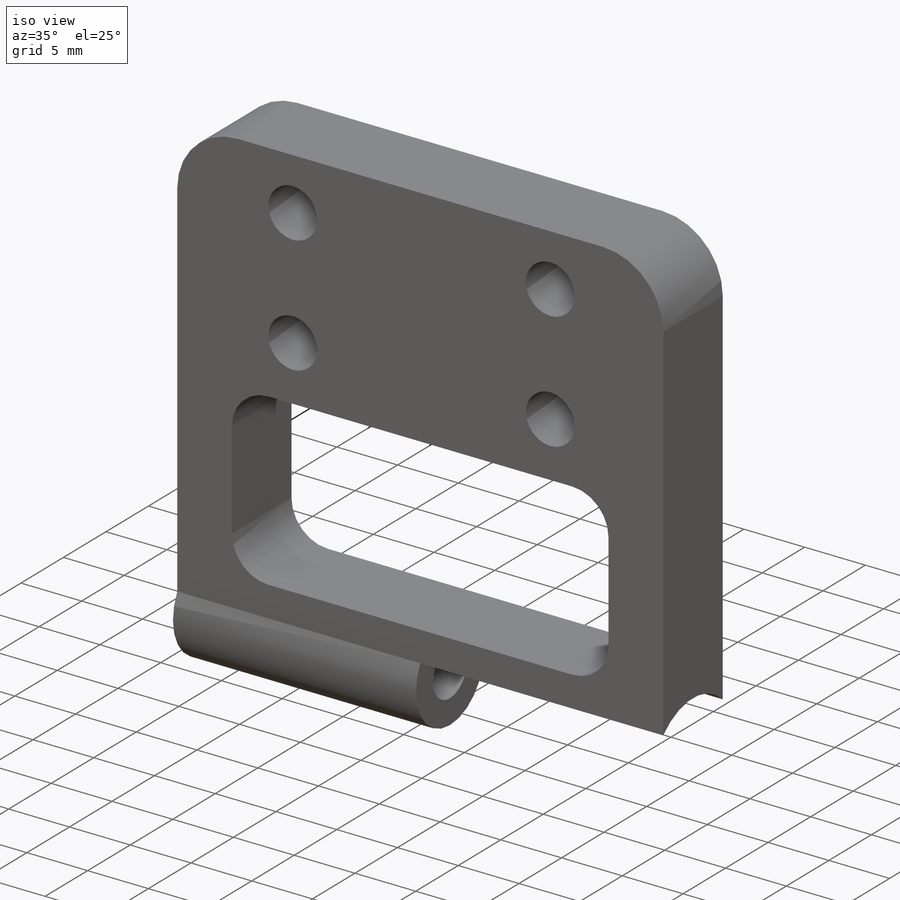
[diagram: iso view]
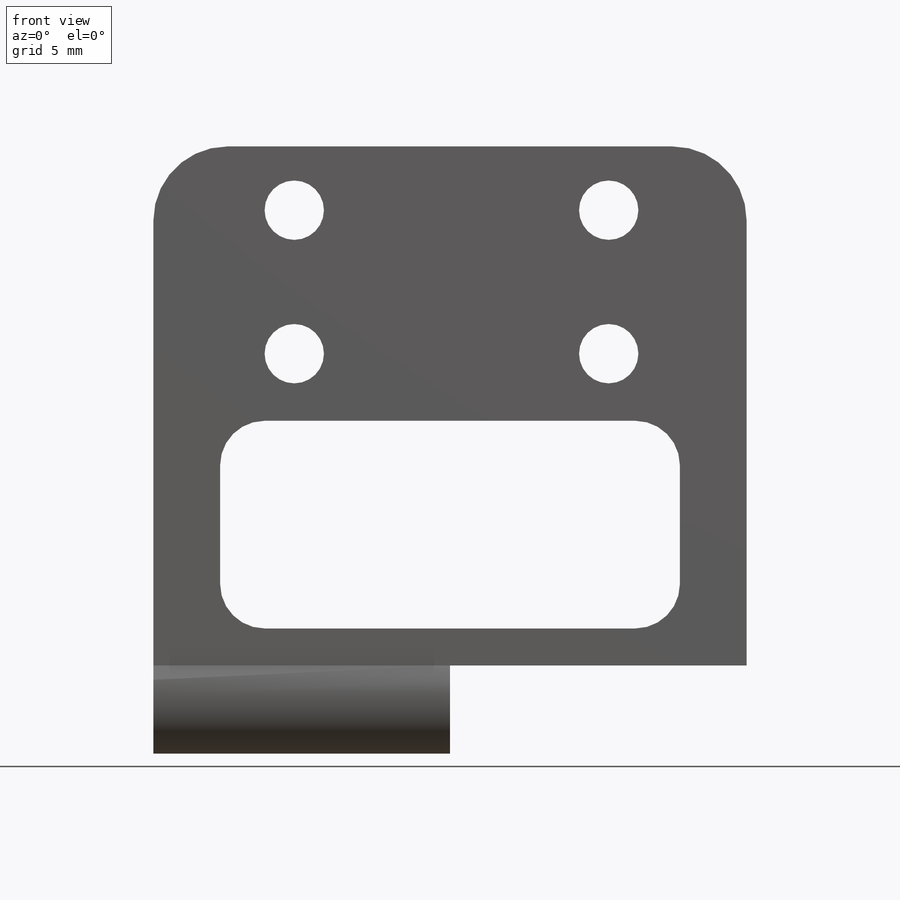
[diagram: front view]
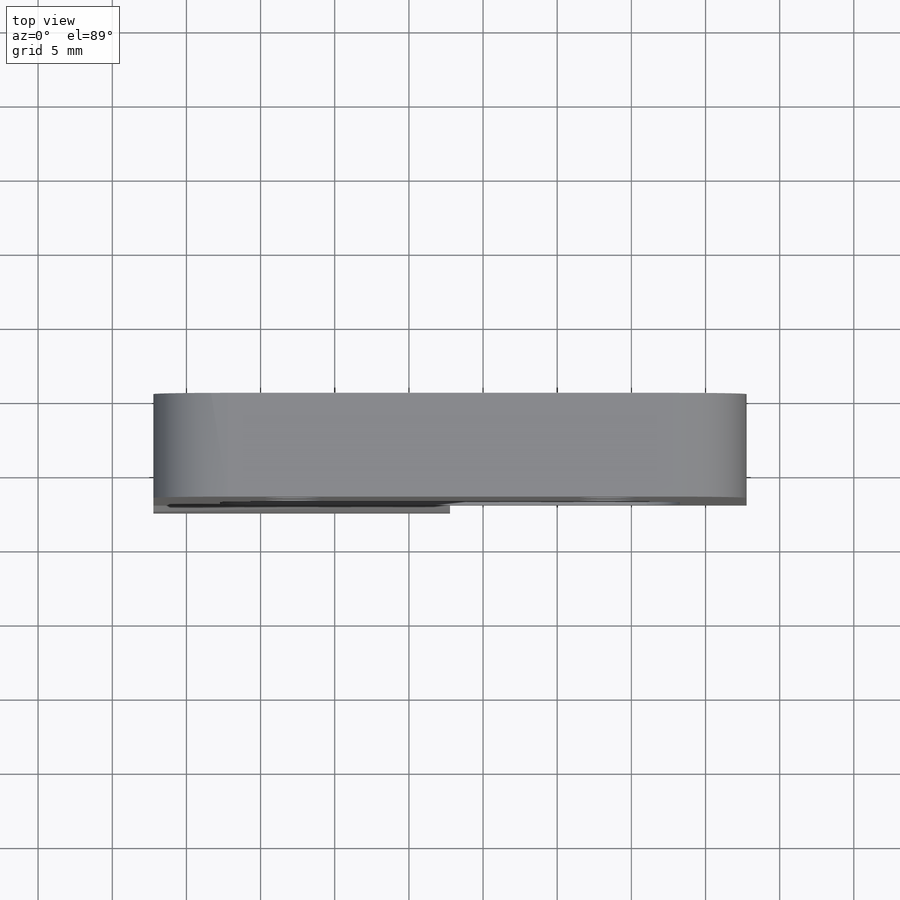
[diagram: top view]
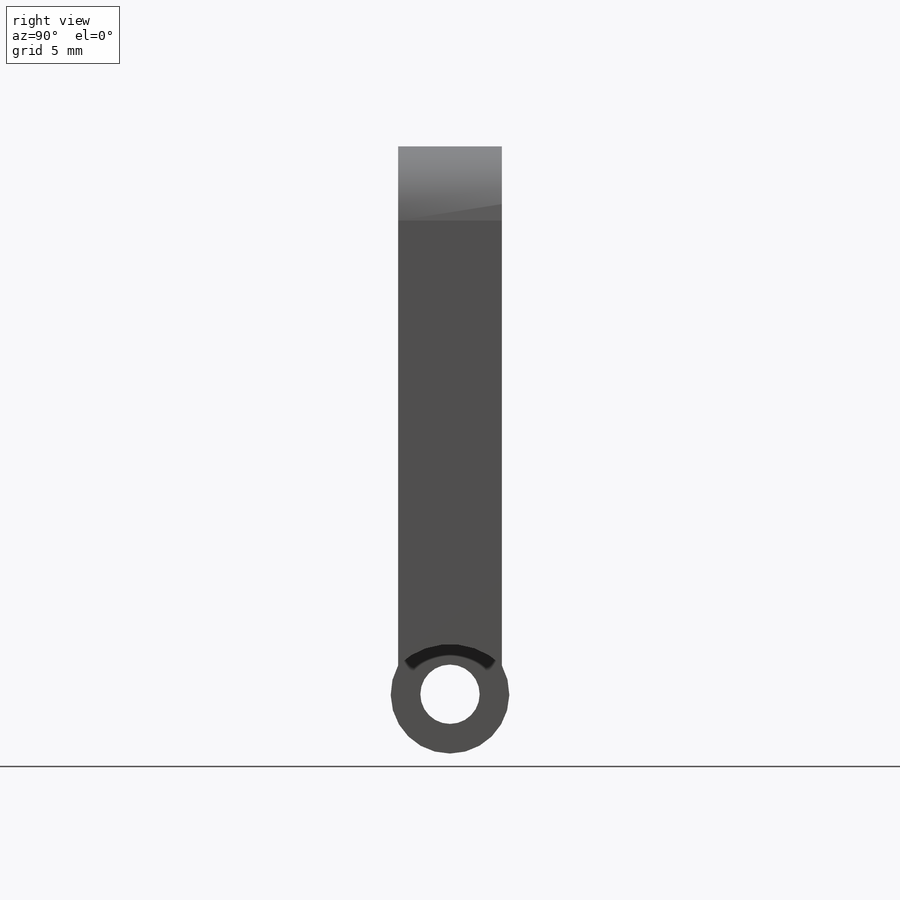
[diagram: right view]
SOLIDWORKS PART (.sldprt)
format: sldprt  version: not decoded by parser v0  size: 241,664 bytes
history: native  units: mm
features: sketch x5, cut_extrude x3, extrude x2, fillet x2, material x1, plane x1 (+13 scaffold rows collapsed)
feature tree (27):
  scaffold x13  (default folders/planes/origin — collapsed)
  material  "Material <not specified>"
  sketch  "Sketch1"  dims[D1=40.0mm D2=35.0mm]
  extrude  "Boss-Extrude1"  Depth=7mm
  sketch  "Sketch2"  dims[c1.D1=8.2mm c1.D2=7.0mm c2.D1=0.1mm]
  cut_extrude  "Cut-Extrude1"  Depth=20mm
  plane  "Plane1"  Offset=31mm
  sketch  "Sketch3"  dims[D1=8.0mm D2=4.0mm]
  extrude  "Boss-Extrude2"  Depth=9mm
  fillet  "Fillet1"  Radius=5mm
  sketch  "Sketch4"  dims[D1=4.0mm D2=4.0mm D3=4.0mm D4=4.0mm D5=31.0mm D6=4.5mm D7=2.5mm D8=14.0mm]
  cut_extrude  "Cut-Extrude2"  [1 undecoded]
  fillet  "Fillet2"  Radius=3mm
  sketch  "Sketch5"
  cut_extrude  "Cut-Extrude3"  [1 undecoded]
decode coverage: 9 of 12 modeling features carry decoded parameters
note: 2 parameter values undecoded
note: suppression state not decoded; provenance and decode notes live in map.json
